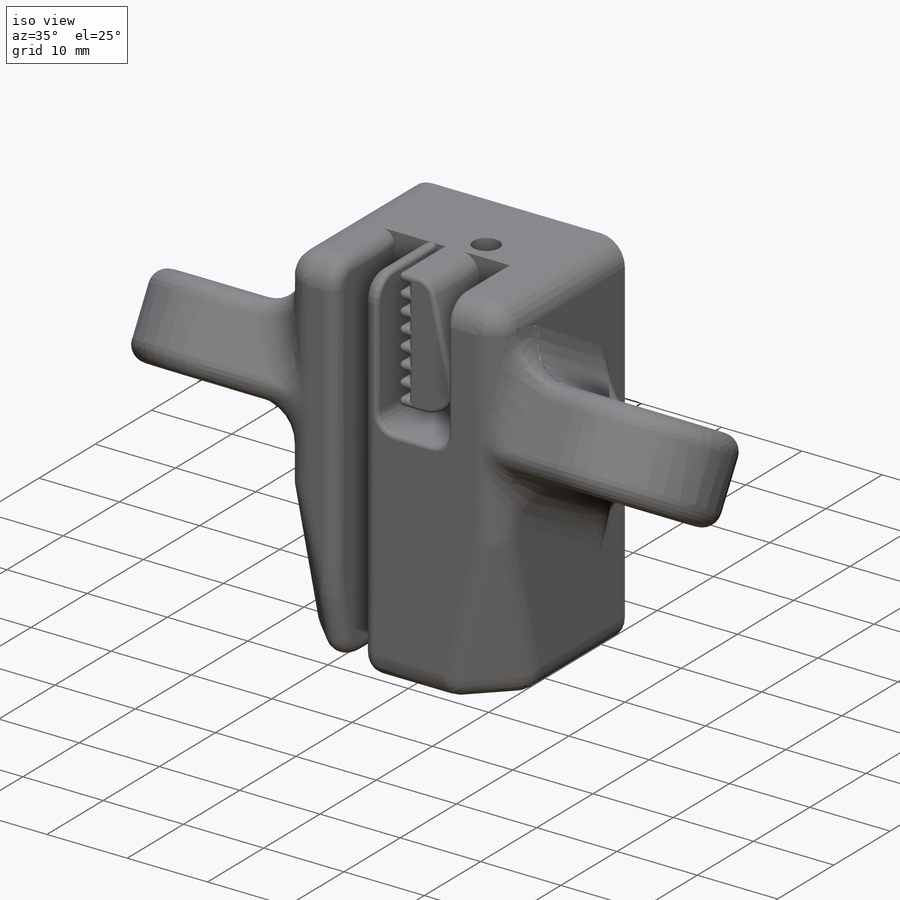
[diagram: iso view]
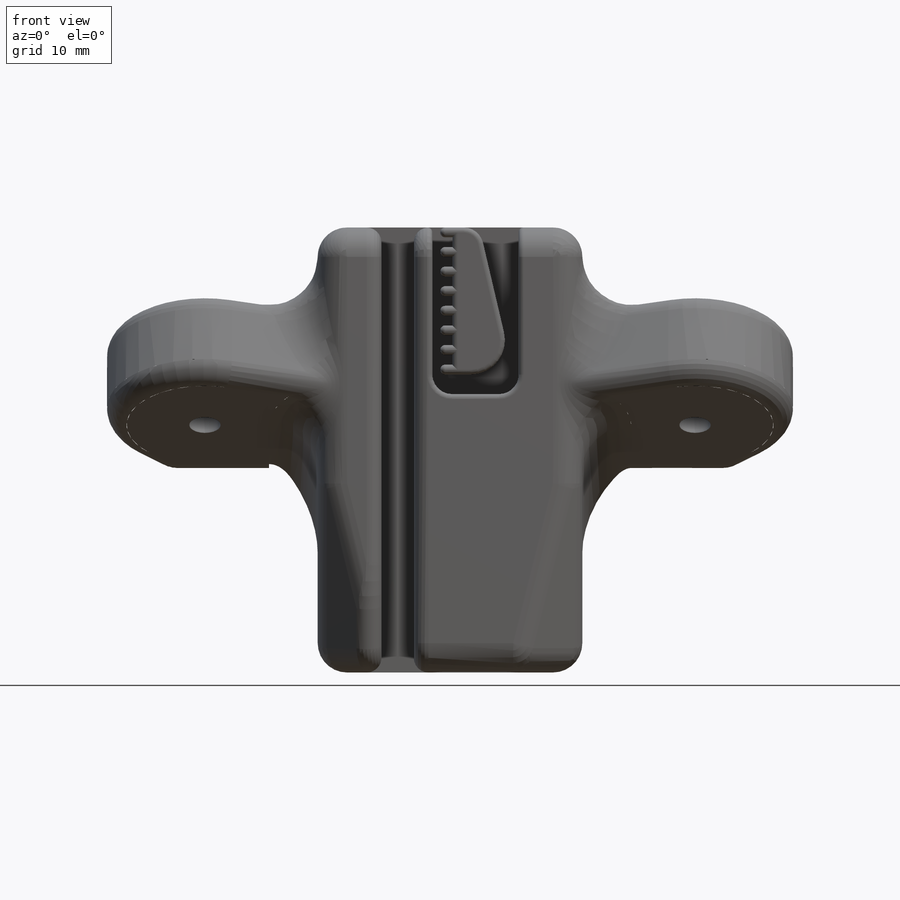
[diagram: front view]
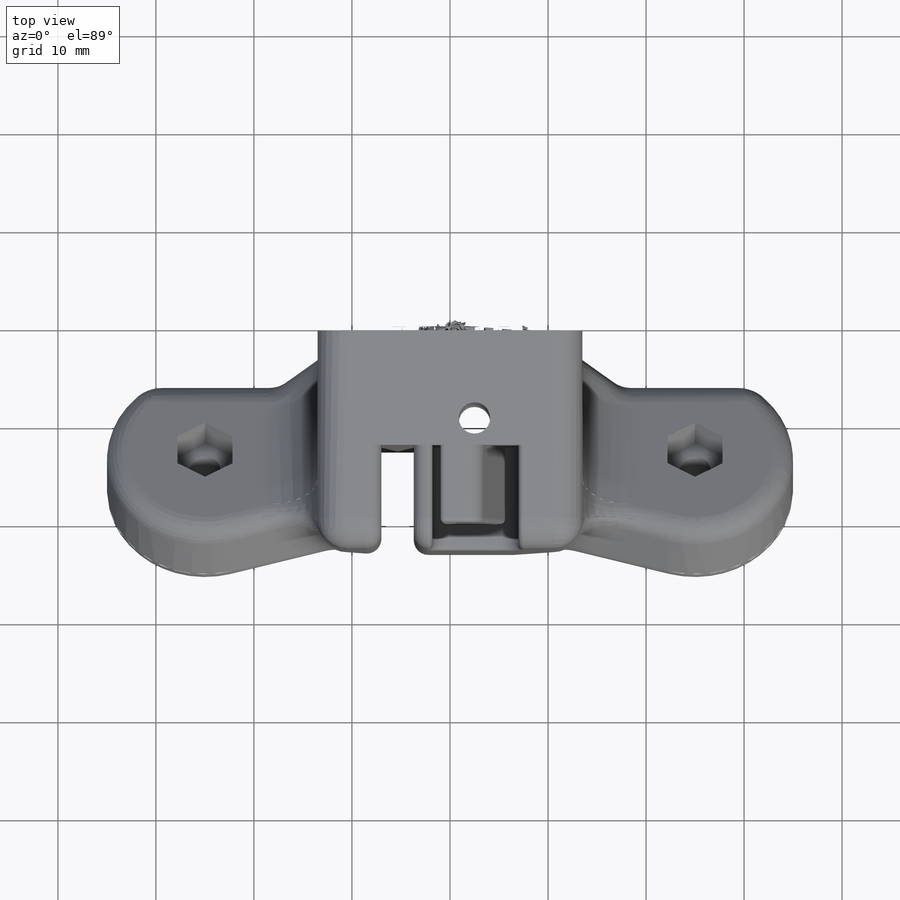
[diagram: top view]
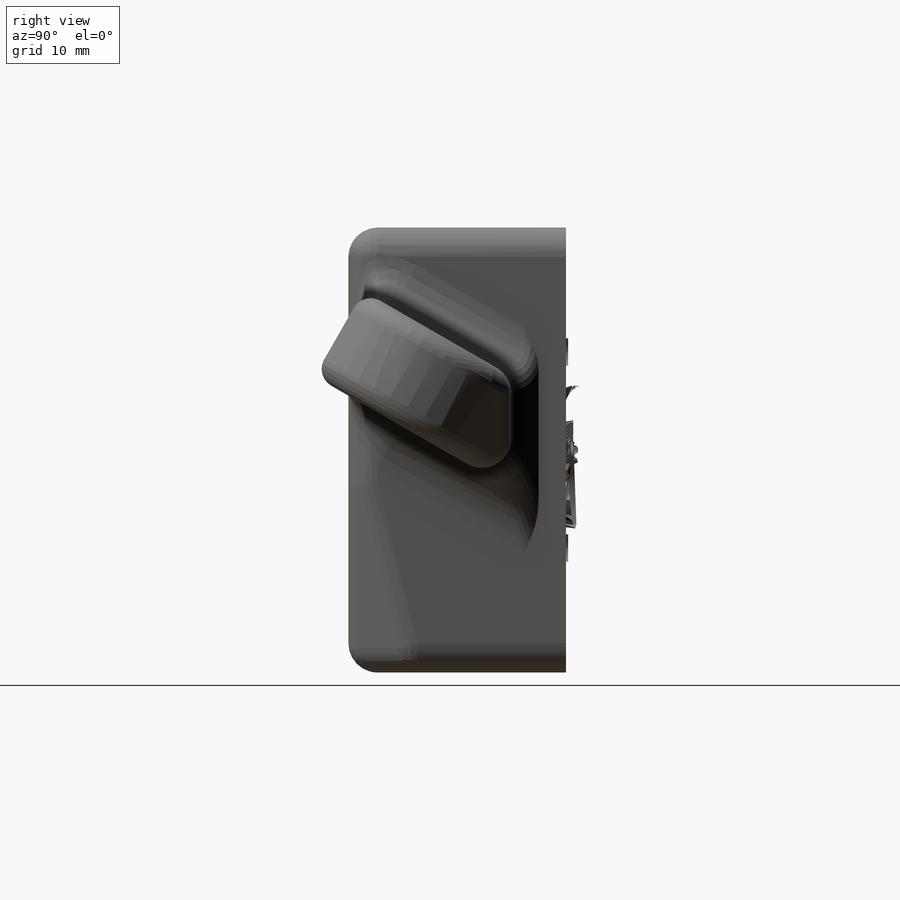
[diagram: right view]
SOLIDWORKS PART (.sldprt)
format: sldprt  version: not decoded by parser v0  size: 1,950,720 bytes
history: native  units: mm
features: sketch x22, cut_extrude x14, fillet x9, extrude x4, plane x2, chamfer x2, material x1 (+13 scaffold rows collapsed)
feature tree (67):
  scaffold x13  (default folders/planes/origin — collapsed)
  material  "ABS"
  sketch  "Sketch1"  dims[D3=2.8mm D4=6.05mm D12=2.0mm D13=3.5mm D16=2.0mm D1=27.0mm D2=45.4mm D5=20.0mm D6=20.0mm D7=3.3mm D8=5.35mm D9=7.0mm D10=17.0mm D11=2.0mm D14=8.8mm D15=0.8mm D17=1.4mm D18=4.0mm D19=1.0mm D20=1.25mm D21=1.0mm D23=1.0mm D22=7.0]
  extrude  "Boss-Extrude1"  Depth=22.95mm
  sketch  "Sketch2"  dims[c1.D1=45.4mm c2.D1=60.0deg c2.D2=17.15mm]
  sketch  "Sketch4"  dims[D1=0.0mm]
  sketch  "3DSketch1"
  plane  "Plane1"
  sketch  "Sketch20"  dims[c1.D1=5.0mm c1.D2=5.0mm c2.D1=6.5mm c2.D2=6.5mm c2.D3=19.5mm c2.D4=0.5mm]
  cut_extrude  "Cut-Extrude16"  Depth=25mm
  fillet  "Fillet2"  Radius=3mm
  sketch  "Sketch5"  dims[c1.D2=10.0mm c1.D1=12.0mm c1.D6=3.2mm c1.D7=~4.338712mm c2.D1=25.0mm c2.D3=5.0mm c2.D4=4.0mm c2.D5=6.0mm c3.D1=50.0mm]
  extrude  "Boss-Extrude2"  Depth=10mm
  sketch  "Sketch6"  dims[D1=~12.90789mm]
  cut_extrude  "Cut-Extrude1"  [1 undecoded]
  fillet  "Fillet1"  Radius=2mm
  fillet  "Fillet3"  Radius=5mm
  sketch  "Sketch7"
  cut_extrude  "Cut-Extrude2"  Depth=10.5mm
  fillet  "Fillet4"  Radius=1.5mm
  cut_extrude  "Cut-Extrude13"  [1 undecoded]
  sketch  "Sketch7<6>"  dims[D1=2.6mm]
  fillet  "Fillet9"  Radius=0.5mm
  fillet  "Fillet10"  Radius=0.5mm
  cut_extrude  "Cut-Extrude7"  [1 undecoded]
  sketch  "Sketch1<3>"  dims[D1=2.0mm]
  sketch  "Sketch10"  dims[c1.D4=1.25mm c1.D8=3.2mm c1.D9=3.2mm c1.D2=1.0mm c1.D1=2.35mm c2.D2=9.4mm c2.D3=2.5mm c2.D5=4.0mm c2.D6=8.0mm c2.D9=13.25mm c2.D7=0.3mm]
  cut_extrude  "Cut-Extrude8"  Depth=17.75mm
  sketch  "Sketch11"
  cut_extrude  "Cut-Extrude9"  Depth=0.3mm
  cut_extrude  "Cut-Extrude10"  [1 undecoded]
  sketch  "Sketch10<3>"
  plane  "Plane2"  Offset=24mm
  sketch  "Sketch12"  dims[D1=5.8mm D2=7.0mm D3=8.0mm]
  cut_extrude  "Cut-Extrude11"  Depth=2.6mm
  sketch  "Sketch14"  dims[D1=5.6mm]
  cut_extrude  "Cut-Extrude12"  Depth=4mm
  sketch  "Sketch15"  dims[c1.D1=2.5mm c1.D2=5.4mm c1.D3=0.8mm c1.D4=1.0mm c1.D5=1.0mm c1.D6=1.95mm c2.D5=1.0mm c2.D6=1.25mm c2.D1=15.0mm c2.D8=1.0mm c2.D2=5.4mm c2.D7=7.0]
  cut_extrude  "Cut-Extrude14"  [1 undecoded]
  fillet  "Fillet11"  Radius=0.5mm
  fillet  "Fillet12"  Radius=0.5mm
  sketch  "Sketch19"  dims[D4=5.2mm D5=7.2mm D1=20.0mm D2=20.0mm D3=35.0mm]
  sketch  "Sketch17"
  cut_extrude  "Cut-Extrude15"  Depth=6.35mm
  sketch  "Sketch23"  dims[D1=0.0mm]
  cut_extrude  "Cut-Extrude18"  [1 undecoded]
  sketch  "Sketch24"  dims[D1=0.0mm]
  extrude  "Boss-Extrude4"  Depth=6.35mm
  sketch  "Sketch25"
  extrude  "Boss-Extrude5"  Depth=5.8mm
  chamfer  "Chamfer2"  Distance=4mm Angle=35deg
  fillet  "Fillet13"  Radius=3mm
  sketch  "Sketch26"
  cut_extrude  "Cut-Extrude19"  [1 undecoded]
  chamfer  "Chamfer3"  Distance=0.75mm Angle=35deg
decode coverage: 37 of 51 modeling features carry decoded parameters
note: ~ marks probable driven/reference dimensions
note: 7 parameter values undecoded
summary: no parameter record found for 7 features
note: suppression state not decoded; provenance and decode notes live in map.json
